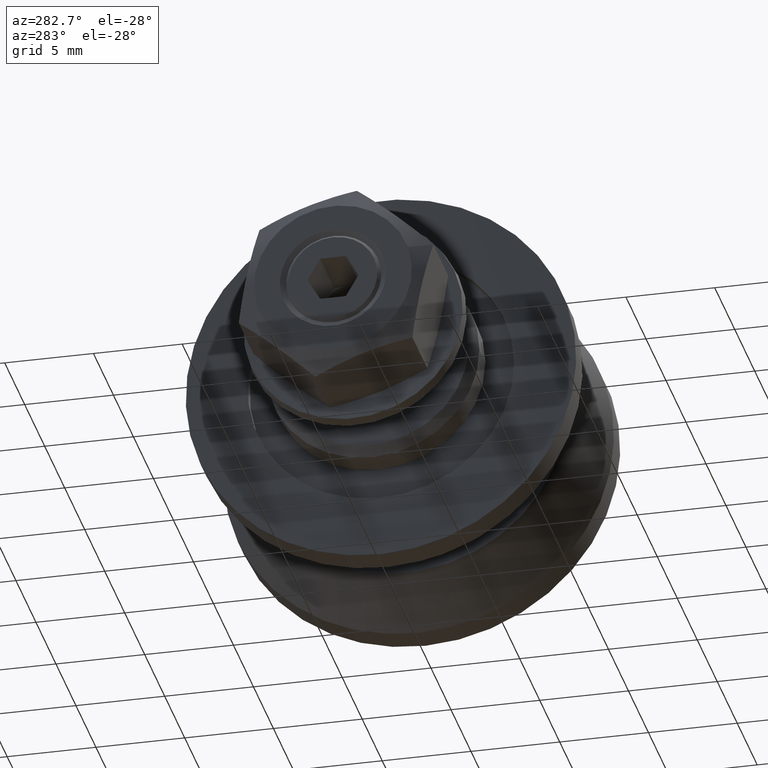
[diagram: clean part render]
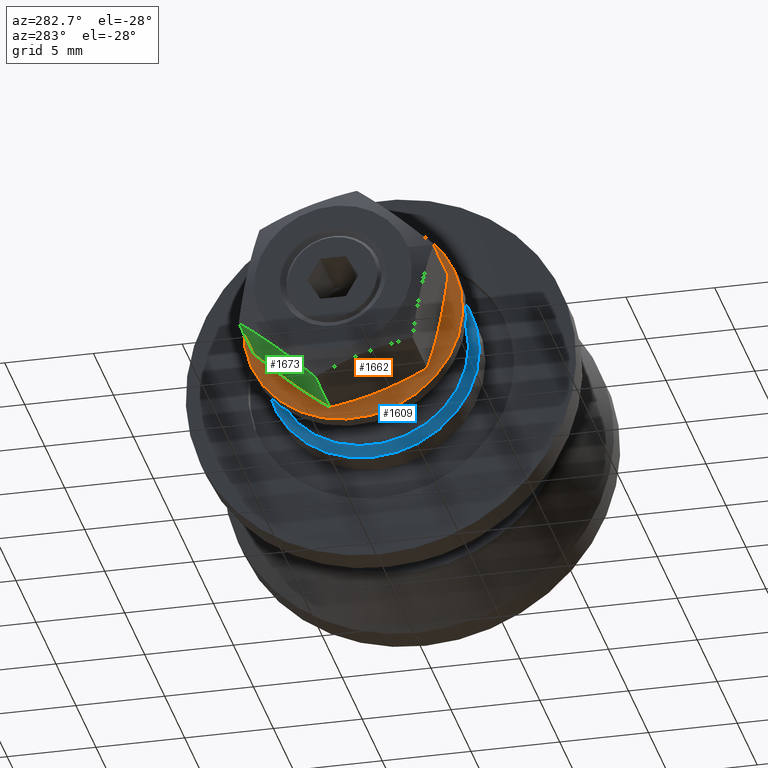
[diagram: same view with three faces highlighted in distinct colors, each labeled with its STEP entity id]
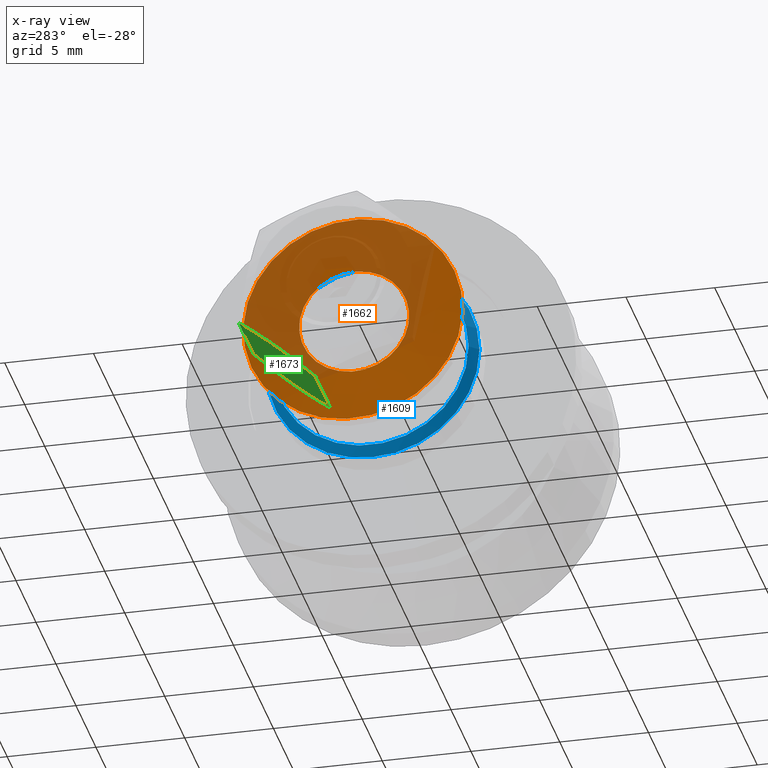
[diagram: x-ray of the same camera — body ghosted, the three highlighted faces saturated]
A machine part, auxiliary view with three faces highlighted in distinct colors.
The next image is the same camera in x-ray (body ghosted, the three faces saturated) — at least one of them is partly hidden behind the body in this view.
Their STEP definitions:

[orange] entity #1662 — the highlighted conical surface has half-angle 84.377 deg.
#280=FACE_OUTER_BOUND('',#396,.T.);
#396=EDGE_LOOP('',(#1491,#1492,#1493,#1494));
#520=LINE('',#2964,#640);
#640=VECTOR('',#2488,4.64070800070618);
#736=CIRCLE('',#1997,3.1);
#737=CIRCLE('',#1999,6.18141600141236);
#866=VERTEX_POINT('',#2959);
#867=VERTEX_POINT('',#2963);
#1077=EDGE_CURVE('',#866,#866,#736,.T.);
#1078=EDGE_CURVE('',#866,#867,#520,.T.);
#1079=EDGE_CURVE('',#867,#867,#737,.T.);
#1491=ORIENTED_EDGE('',*,*,#1077,.T.);
#1492=ORIENTED_EDGE('',*,*,#1078,.T.);
#1493=ORIENTED_EDGE('',*,*,#1079,.F.);
#1494=ORIENTED_EDGE('',*,*,#1078,.F.);
#1569=CONICAL_SURFACE('',#1998,4.64070800070618,1.47266174932118);
#1662=ADVANCED_FACE('',(#280),#1569,.F.);
#1997=AXIS2_PLACEMENT_3D('',#2961,#2484,#2485);
#1998=AXIS2_PLACEMENT_3D('',#2962,#2486,#2487);
#1999=AXIS2_PLACEMENT_3D('',#2965,#2489,#2490);
#2484=DIRECTION('center_axis',(-3.67394039744206E-17,1.,0.));
#2485=DIRECTION('ref_axis',(-1.,-4.44095203949991E-17,0.));
#2486=DIRECTION('center_axis',(3.67394039744206E-17,-1.,0.));
#2487=DIRECTION('ref_axis',(-1.,-4.44095203949991E-17,0.));
#2488=DIRECTION('',(0.995188665466463,-0.0979771408394843,-1.21875461371123E-16));
#2489=DIRECTION('center_axis',(-3.67394039744206E-17,1.,0.));
#2490=DIRECTION('ref_axis',(-1.,-4.44095203949991E-17,0.));
#2959=CARTESIAN_POINT('',(3.1,0.303367934173476,-3.79640507735679E-16));
#2961=CARTESIAN_POINT('Origin',(-1.11455570864848E-17,0.303367934173476,
0.));
#2962=CARTESIAN_POINT('Origin',(-5.57277854324238E-18,0.151683967086738,
0.));
#2963=CARTESIAN_POINT('',(6.18141600141236,8.67361737988404E-17,-7.57005132032788E-16));
#2964=CARTESIAN_POINT('',(4.64070800070618,0.151683967086738,-5.68322819884234E-16));
#2965=CARTESIAN_POINT('Origin',(7.70371977754894E-33,-1.38777878078145E-16,
0.));

[blue] entity #1609 — the highlighted conical surface has half-angle 45 deg.
#227=FACE_OUTER_BOUND('',#331,.T.);
#331=EDGE_LOOP('',(#1261,#1262,#1263,#1264,#1265));
#469=LINE('',#2725,#589);
#589=VECTOR('',#2205,5.75);
#674=CIRCLE('',#1878,6.);
#675=CIRCLE('',#1879,6.);
#677=CIRCLE('',#1883,5.5);
#792=VERTEX_POINT('',#2715);
#793=VERTEX_POINT('',#2717);
#795=VERTEX_POINT('',#2724);
#964=EDGE_CURVE('',#793,#792,#674,.T.);
#965=EDGE_CURVE('',#792,#793,#675,.T.);
#967=EDGE_CURVE('',#793,#795,#469,.T.);
#968=EDGE_CURVE('',#795,#795,#677,.T.);
#1261=ORIENTED_EDGE('',*,*,#964,.T.);
#1262=ORIENTED_EDGE('',*,*,#965,.T.);
#1263=ORIENTED_EDGE('',*,*,#967,.T.);
#1264=ORIENTED_EDGE('',*,*,#968,.T.);
#1265=ORIENTED_EDGE('',*,*,#967,.F.);
#1563=CONICAL_SURFACE('',#1882,5.75,0.785398163397449);
#1609=ADVANCED_FACE('',(#227),#1563,.T.);
#1878=AXIS2_PLACEMENT_3D('',#2718,#2195,#2196);
#1879=AXIS2_PLACEMENT_3D('',#2719,#2197,#2198);
#1882=AXIS2_PLACEMENT_3D('',#2723,#2203,#2204);
#1883=AXIS2_PLACEMENT_3D('',#2726,#2206,#2207);
#2195=DIRECTION('center_axis',(-1.,0.,0.));
#2196=DIRECTION('ref_axis',(0.,-1.,0.));
#2197=DIRECTION('center_axis',(-1.,0.,0.));
#2198=DIRECTION('ref_axis',(0.,-1.,0.));
#2203=DIRECTION('center_axis',(1.,0.,0.));
#2204=DIRECTION('ref_axis',(0.,-1.,0.));
#2205=DIRECTION('',(-0.707106781186547,-0.707106781186548,-8.65956056235494E-17));
#2206=DIRECTION('center_axis',(1.,0.,0.));
#2207=DIRECTION('ref_axis',(0.,-1.,0.));
#2715=CARTESIAN_POINT('',(0.5,-6.,-7.34788079488412E-16));
#2717=CARTESIAN_POINT('',(0.5,6.,-7.34788079488412E-16));
#2718=CARTESIAN_POINT('Origin',(0.5,0.,0.));
#2719=CARTESIAN_POINT('Origin',(0.5,0.,0.));
#2723=CARTESIAN_POINT('Origin',(0.25,0.,0.));
#2724=CARTESIAN_POINT('',(-2.08166817117217E-16,5.5,6.73555739531044E-16));
#2725=CARTESIAN_POINT('',(0.25,5.75,7.04171909509728E-16));
#2726=CARTESIAN_POINT('Origin',(-2.08166817117217E-16,0.,0.));

[green] entity #1673 — the highlighted planar face has unit normal (-0, 0.6657, -0.7462).
#32=(
BOUNDED_CURVE()
B_SPLINE_CURVE(2,(#2998,#2999,#3000),.UNSPECIFIED.,.F.,.F.)
B_SPLINE_CURVE_WITH_KNOTS((3,3),(0.,0.584218069038959),.UNSPECIFIED.)
CURVE()
GEOMETRIC_REPRESENTATION_ITEM()
RATIONAL_B_SPLINE_CURVE((1.,1.15470053837925,1.))
REPRESENTATION_ITEM('')
);
#40=(
BOUNDED_CURVE()
B_SPLINE_CURVE(2,(#3033,#3034,#3035),.UNSPECIFIED.,.F.,.F.)
B_SPLINE_CURVE_WITH_KNOTS((3,3),(0.,0.584218069038958),.UNSPECIFIED.)
CURVE()
GEOMETRIC_REPRESENTATION_ITEM()
RATIONAL_B_SPLINE_CURVE((1.,1.15470053837925,1.))
REPRESENTATION_ITEM('')
);
#157=PLANE('',#2018);
#291=FACE_OUTER_BOUND('',#409,.T.);
#409=EDGE_LOOP('',(#1543,#1544,#1545,#1546));
#527=LINE('',#3044,#647);
#530=LINE('',#3049,#650);
#647=VECTOR('',#2531,10.);
#650=VECTOR('',#2538,10.);
#875=VERTEX_POINT('',#2992);
#877=VERTEX_POINT('',#2997);
#884=VERTEX_POINT('',#3028);
#885=VERTEX_POINT('',#3032);
#1092=EDGE_CURVE('',#877,#875,#32,.T.);
#1102=EDGE_CURVE('',#885,#884,#40,.T.);
#1105=EDGE_CURVE('',#877,#884,#527,.T.);
#1108=EDGE_CURVE('',#875,#885,#530,.T.);
#1543=ORIENTED_EDGE('',*,*,#1092,.T.);
#1544=ORIENTED_EDGE('',*,*,#1108,.T.);
#1545=ORIENTED_EDGE('',*,*,#1102,.T.);
#1546=ORIENTED_EDGE('',*,*,#1105,.F.);
#1673=ADVANCED_FACE('',(#291),#157,.T.);
#2018=AXIS2_PLACEMENT_3D('',#3048,#2536,#2537);
#2531=DIRECTION('',(1.,0.,0.));
#2536=DIRECTION('center_axis',(0.,0.866025403784438,0.5));
#2537=DIRECTION('ref_axis',(1.,0.,0.));
#2538=DIRECTION('',(1.,0.,0.));
#2992=CARTESIAN_POINT('',(0.764124635439498,2.88675134594813,5.));
#2997=CARTESIAN_POINT('',(0.764124635439498,5.77350269189626,0.));
#2998=CARTESIAN_POINT('Ctrl Pts',(0.764124635439498,5.77350269189626,2.82138530844397E-15));
#2999=CARTESIAN_POINT('Ctrl Pts',(-0.0692086978938351,4.33012701892219,
2.50000000000001));
#3000=CARTESIAN_POINT('Ctrl Pts',(0.764124635439498,2.88675134594813,5.));
#3028=CARTESIAN_POINT('',(4.4358753645605,5.77350269189626,0.));
#3032=CARTESIAN_POINT('',(4.4358753645605,2.88675134594813,5.));
#3033=CARTESIAN_POINT('Ctrl Pts',(4.4358753645605,2.88675134594813,5.));
#3034=CARTESIAN_POINT('Ctrl Pts',(5.26920869789383,4.33012701892219,2.5));
#3035=CARTESIAN_POINT('Ctrl Pts',(4.4358753645605,5.77350269189625,6.89671964286303E-15));
#3044=CARTESIAN_POINT('',(0.,5.77350269189626,2.28876380283282E-15));
#3048=CARTESIAN_POINT('Origin',(0.,2.88675134594813,5.));
#3049=CARTESIAN_POINT('',(0.,2.88675134594813,5.));